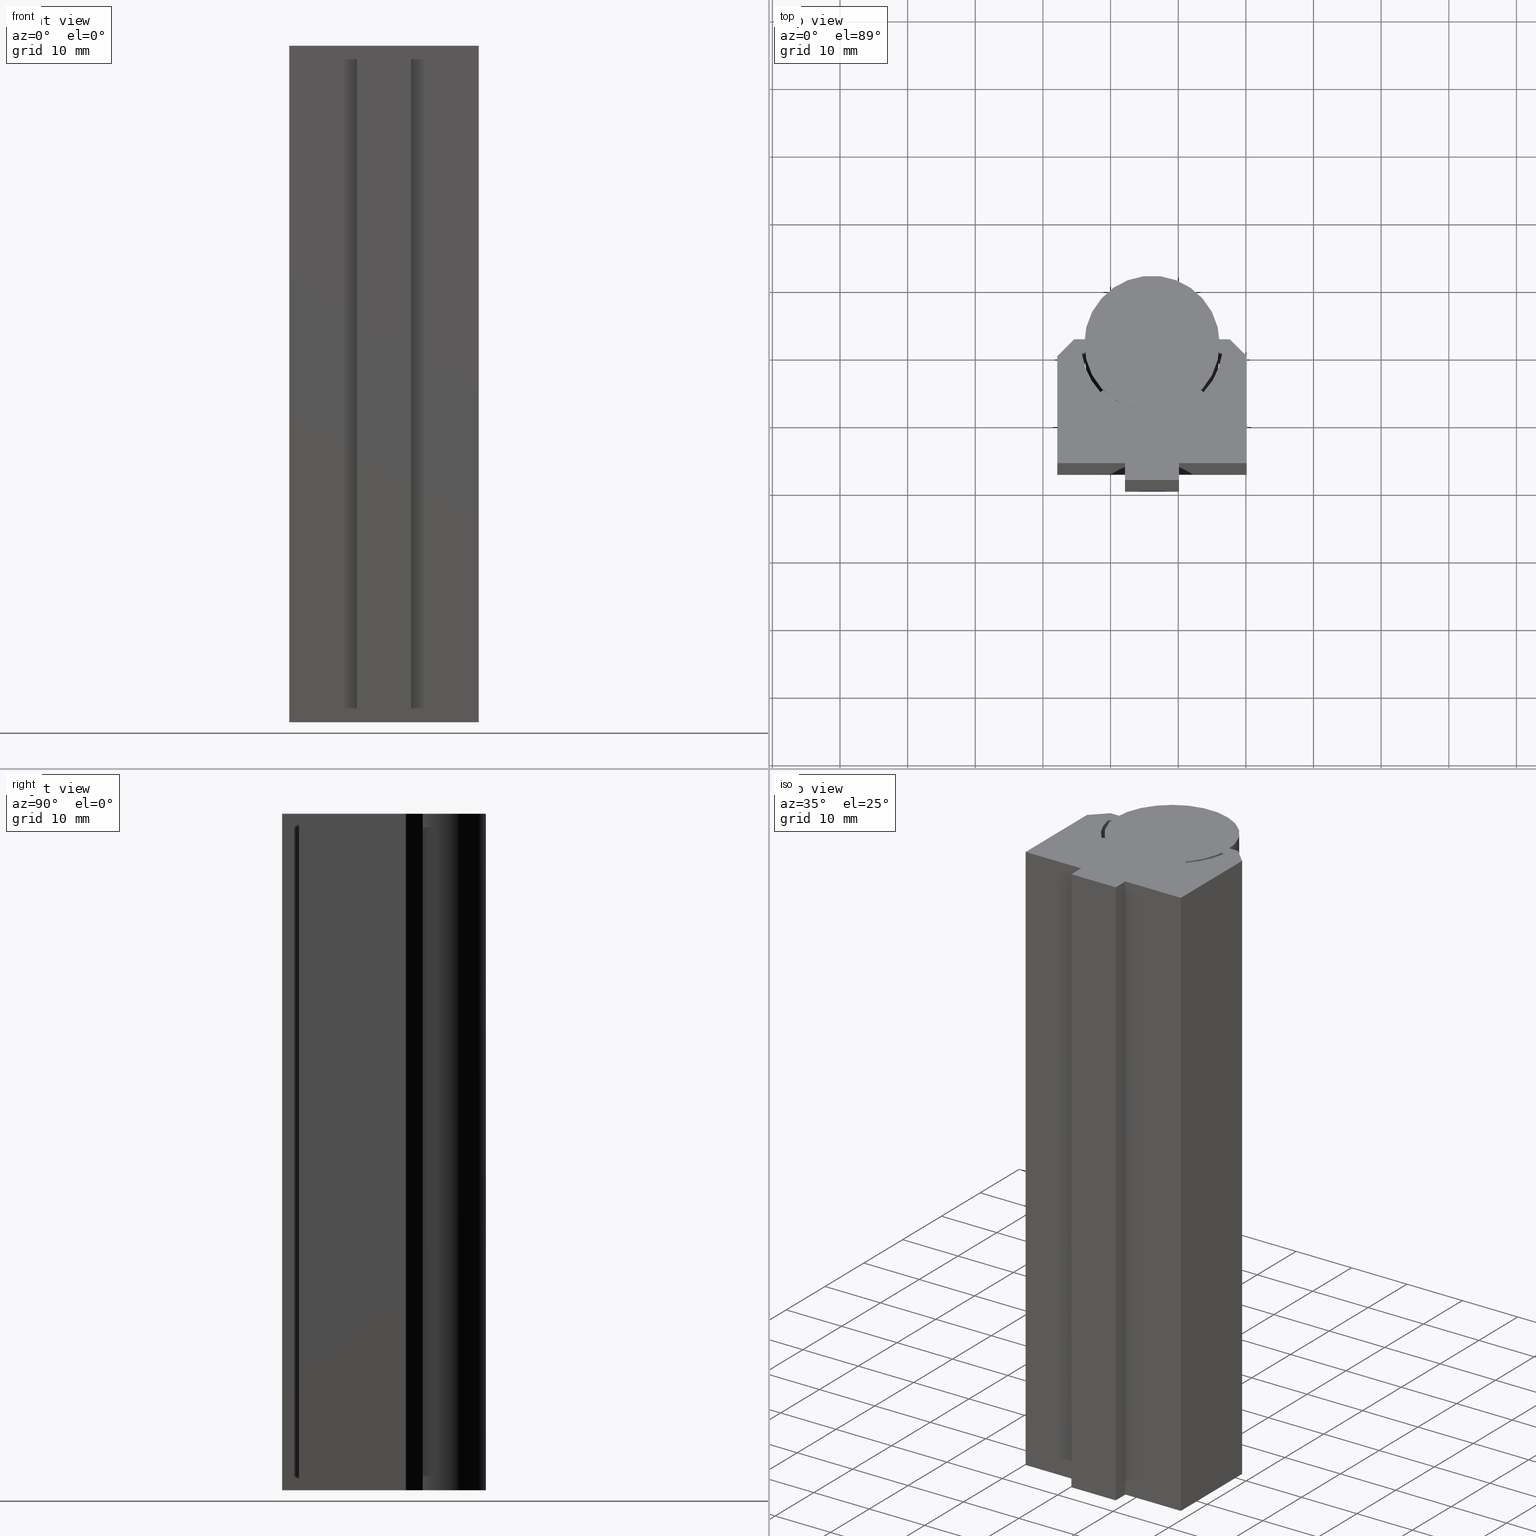
[diagram: canonical four-view strip — front | top / right | iso, engineering-drawing reading convention]
A machine part, canonical four-view strip (front | top / right | iso — engineering-drawing reading convention). The complete STEP part file that produces these views, byte-faithful:
ISO-10303-21;
HEADER;
/* Generated by software containing ST-Developer
 * from STEP Tools, Inc. (www.steptools.com) 
 */

FILE_DESCRIPTION(
/* description */ ('PROFILO SUPPORTO TONDO \X\D820'),
/* implementation_level */ '2;1');

FILE_NAME(
/* name */ 
'C:\\Users\\tecnico5\\Desktop\\SITOWEB\\BPRGD0000102\\BPRGD0000102.stp',

/* time_stamp */ '2022-07-27T10:39:41+02:00',
/* author */ ('tecnico3.vi'),
/* organization */ (''),
/* preprocessor_version */ 'ST-DEVELOPER v18.1',
/* originating_system */ 'Autodesk Inventor 2022',
/* authorisation */ '');

FILE_SCHEMA (('AUTOMOTIVE_DESIGN { 1 0 10303 214 3 1 1 }'));
ENDSEC;

DATA;
#10=MECHANICAL_DESIGN_GEOMETRIC_PRESENTATION_REPRESENTATION('',(#13,#14,
#15,#16,#17),#783);
#11=SHAPE_REPRESENTATION_RELATIONSHIP('SRR','None',#790,#12);
#12=ADVANCED_BREP_SHAPE_REPRESENTATION('',(#18,#19),#782);
#13=STYLED_ITEM('',(#799),#18);
#14=STYLED_ITEM('',(#800),#466);
#15=STYLED_ITEM('',(#800),#467);
#16=STYLED_ITEM('',(#800),#468);
#17=STYLED_ITEM('',(#799),#19);
#18=MANIFOLD_SOLID_BREP('Solido1',#469);
#19=MANIFOLD_SOLID_BREP('Solido2',#470);
#20=CIRCLE('',#503,10.5);
#21=CIRCLE('',#504,10.5);
#22=CIRCLE('',#507,10.);
#23=CIRCLE('',#508,10.);
#24=CIRCLE('',#511,10.5);
#25=CIRCLE('',#512,10.5);
#26=CIRCLE('',#522,10.);
#27=CIRCLE('',#523,10.);
#28=CYLINDRICAL_SURFACE('',#502,10.5);
#29=CYLINDRICAL_SURFACE('',#506,10.);
#30=CYLINDRICAL_SURFACE('',#510,10.5);
#31=CYLINDRICAL_SURFACE('',#521,10.);
#32=FACE_OUTER_BOUND('',#57,.T.);
#33=FACE_OUTER_BOUND('',#58,.T.);
#34=FACE_OUTER_BOUND('',#59,.T.);
#35=FACE_OUTER_BOUND('',#60,.T.);
#36=FACE_OUTER_BOUND('',#61,.T.);
#37=FACE_OUTER_BOUND('',#62,.T.);
#38=FACE_OUTER_BOUND('',#63,.T.);
#39=FACE_OUTER_BOUND('',#64,.T.);
#40=FACE_OUTER_BOUND('',#65,.T.);
#41=FACE_OUTER_BOUND('',#66,.T.);
#42=FACE_OUTER_BOUND('',#67,.T.);
#43=FACE_OUTER_BOUND('',#68,.T.);
#44=FACE_OUTER_BOUND('',#69,.T.);
#45=FACE_OUTER_BOUND('',#70,.T.);
#46=FACE_OUTER_BOUND('',#71,.T.);
#47=FACE_OUTER_BOUND('',#72,.T.);
#48=FACE_OUTER_BOUND('',#73,.T.);
#49=FACE_OUTER_BOUND('',#74,.T.);
#50=FACE_OUTER_BOUND('',#75,.T.);
#51=FACE_OUTER_BOUND('',#76,.T.);
#52=FACE_OUTER_BOUND('',#77,.T.);
#53=FACE_OUTER_BOUND('',#78,.T.);
#54=FACE_OUTER_BOUND('',#79,.T.);
#55=FACE_OUTER_BOUND('',#80,.T.);
#56=FACE_OUTER_BOUND('',#81,.T.);
#57=EDGE_LOOP('',(#297,#298,#299,#300));
#58=EDGE_LOOP('',(#301,#302,#303,#304));
#59=EDGE_LOOP('',(#305,#306,#307,#308));
#60=EDGE_LOOP('',(#309,#310,#311,#312));
#61=EDGE_LOOP('',(#313,#314,#315,#316));
#62=EDGE_LOOP('',(#317,#318,#319,#320));
#63=EDGE_LOOP('',(#321,#322,#323,#324));
#64=EDGE_LOOP('',(#325,#326,#327,#328));
#65=EDGE_LOOP('',(#329,#330,#331,#332));
#66=EDGE_LOOP('',(#333,#334,#335,#336));
#67=EDGE_LOOP('',(#337,#338,#339,#340));
#68=EDGE_LOOP('',(#341,#342,#343,#344));
#69=EDGE_LOOP('',(#345,#346,#347,#348));
#70=EDGE_LOOP('',(#349,#350,#351,#352));
#71=EDGE_LOOP('',(#353,#354,#355,#356));
#72=EDGE_LOOP('',(#357,#358,#359,#360));
#73=EDGE_LOOP('',(#361,#362,#363,#364));
#74=EDGE_LOOP('',(#365,#366,#367,#368));
#75=EDGE_LOOP('',(#369,#370,#371,#372));
#76=EDGE_LOOP('',(#373,#374,#375,#376));
#77=EDGE_LOOP('',(#377,#378,#379,#380,#381,#382,#383,#384,#385,#386,#387,
#388,#389,#390,#391,#392,#393,#394,#395,#396));
#78=EDGE_LOOP('',(#397,#398,#399,#400,#401,#402,#403,#404,#405,#406,#407,
#408,#409,#410,#411,#412,#413,#414,#415,#416));
#79=EDGE_LOOP('',(#417,#418,#419,#420));
#80=EDGE_LOOP('',(#421));
#81=EDGE_LOOP('',(#422));
#82=LINE('',#653,#137);
#83=LINE('',#655,#138);
#84=LINE('',#657,#139);
#85=LINE('',#658,#140);
#86=LINE('',#662,#141);
#87=LINE('',#664,#142);
#88=LINE('',#666,#143);
#89=LINE('',#667,#144);
#90=LINE('',#671,#145);
#91=LINE('',#673,#146);
#92=LINE('',#675,#147);
#93=LINE('',#676,#148);
#94=LINE('',#679,#149);
#95=LINE('',#681,#150);
#96=LINE('',#682,#151);
#97=LINE('',#685,#152);
#98=LINE('',#687,#153);
#99=LINE('',#688,#154);
#100=LINE('',#691,#155);
#101=LINE('',#693,#156);
#102=LINE('',#694,#157);
#103=LINE('',#697,#158);
#104=LINE('',#699,#159);
#105=LINE('',#700,#160);
#106=LINE('',#702,#161);
#107=LINE('',#703,#162);
#108=LINE('',#706,#163);
#109=LINE('',#708,#164);
#110=LINE('',#709,#165);
#111=LINE('',#714,#166);
#112=LINE('',#718,#167);
#113=LINE('',#720,#168);
#114=LINE('',#721,#169);
#115=LINE('',#726,#170);
#116=LINE('',#730,#171);
#117=LINE('',#732,#172);
#118=LINE('',#733,#173);
#119=LINE('',#738,#174);
#120=LINE('',#741,#175);
#121=LINE('',#742,#176);
#122=LINE('',#745,#177);
#123=LINE('',#747,#178);
#124=LINE('',#748,#179);
#125=LINE('',#751,#180);
#126=LINE('',#753,#181);
#127=LINE('',#754,#182);
#128=LINE('',#757,#183);
#129=LINE('',#759,#184);
#130=LINE('',#760,#185);
#131=LINE('',#763,#186);
#132=LINE('',#765,#187);
#133=LINE('',#766,#188);
#134=LINE('',#768,#189);
#135=LINE('',#769,#190);
#136=LINE('',#776,#191);
#137=VECTOR('',#530,10.);
#138=VECTOR('',#531,10.);
#139=VECTOR('',#532,10.);
#140=VECTOR('',#533,10.);
#141=VECTOR('',#536,10.);
#142=VECTOR('',#537,10.);
#143=VECTOR('',#538,10.);
#144=VECTOR('',#539,10.);
#145=VECTOR('',#542,10.);
#146=VECTOR('',#543,10.);
#147=VECTOR('',#544,10.);
#148=VECTOR('',#545,10.);
#149=VECTOR('',#548,10.);
#150=VECTOR('',#549,10.);
#151=VECTOR('',#550,10.);
#152=VECTOR('',#553,10.);
#153=VECTOR('',#554,10.);
#154=VECTOR('',#555,10.);
#155=VECTOR('',#558,10.);
#156=VECTOR('',#559,10.);
#157=VECTOR('',#560,10.);
#158=VECTOR('',#563,10.);
#159=VECTOR('',#564,10.);
#160=VECTOR('',#565,10.);
#161=VECTOR('',#568,10.);
#162=VECTOR('',#569,10.);
#163=VECTOR('',#572,10.);
#164=VECTOR('',#573,10.);
#165=VECTOR('',#574,10.);
#166=VECTOR('',#579,10.);
#167=VECTOR('',#584,10.);
#168=VECTOR('',#585,10.);
#169=VECTOR('',#586,10.);
#170=VECTOR('',#591,10.);
#171=VECTOR('',#596,10.);
#172=VECTOR('',#597,10.);
#173=VECTOR('',#598,10.);
#174=VECTOR('',#603,10.);
#175=VECTOR('',#608,10.);
#176=VECTOR('',#609,10.);
#177=VECTOR('',#612,10.);
#178=VECTOR('',#613,10.);
#179=VECTOR('',#614,10.);
#180=VECTOR('',#617,10.);
#181=VECTOR('',#618,10.);
#182=VECTOR('',#619,10.);
#183=VECTOR('',#622,10.);
#184=VECTOR('',#623,10.);
#185=VECTOR('',#624,10.);
#186=VECTOR('',#627,10.);
#187=VECTOR('',#628,10.);
#188=VECTOR('',#629,10.);
#189=VECTOR('',#632,10.);
#190=VECTOR('',#633,10.);
#191=VECTOR('',#642,10.);
#192=VERTEX_POINT('',#651);
#193=VERTEX_POINT('',#652);
#194=VERTEX_POINT('',#654);
#195=VERTEX_POINT('',#656);
#196=VERTEX_POINT('',#660);
#197=VERTEX_POINT('',#661);
#198=VERTEX_POINT('',#663);
#199=VERTEX_POINT('',#665);
#200=VERTEX_POINT('',#669);
#201=VERTEX_POINT('',#670);
#202=VERTEX_POINT('',#672);
#203=VERTEX_POINT('',#674);
#204=VERTEX_POINT('',#678);
#205=VERTEX_POINT('',#680);
#206=VERTEX_POINT('',#684);
#207=VERTEX_POINT('',#686);
#208=VERTEX_POINT('',#690);
#209=VERTEX_POINT('',#692);
#210=VERTEX_POINT('',#696);
#211=VERTEX_POINT('',#698);
#212=VERTEX_POINT('',#705);
#213=VERTEX_POINT('',#707);
#214=VERTEX_POINT('',#711);
#215=VERTEX_POINT('',#713);
#216=VERTEX_POINT('',#717);
#217=VERTEX_POINT('',#719);
#218=VERTEX_POINT('',#723);
#219=VERTEX_POINT('',#725);
#220=VERTEX_POINT('',#729);
#221=VERTEX_POINT('',#731);
#222=VERTEX_POINT('',#735);
#223=VERTEX_POINT('',#737);
#224=VERTEX_POINT('',#744);
#225=VERTEX_POINT('',#746);
#226=VERTEX_POINT('',#750);
#227=VERTEX_POINT('',#752);
#228=VERTEX_POINT('',#756);
#229=VERTEX_POINT('',#758);
#230=VERTEX_POINT('',#762);
#231=VERTEX_POINT('',#764);
#232=VERTEX_POINT('',#773);
#233=VERTEX_POINT('',#775);
#234=EDGE_CURVE('',#192,#193,#82,.T.);
#235=EDGE_CURVE('',#194,#192,#83,.T.);
#236=EDGE_CURVE('',#195,#194,#84,.T.);
#237=EDGE_CURVE('',#193,#195,#85,.T.);
#238=EDGE_CURVE('',#196,#197,#86,.T.);
#239=EDGE_CURVE('',#196,#198,#87,.T.);
#240=EDGE_CURVE('',#199,#198,#88,.T.);
#241=EDGE_CURVE('',#199,#197,#89,.T.);
#242=EDGE_CURVE('',#200,#201,#90,.T.);
#243=EDGE_CURVE('',#202,#201,#91,.T.);
#244=EDGE_CURVE('',#202,#203,#92,.T.);
#245=EDGE_CURVE('',#203,#200,#93,.T.);
#246=EDGE_CURVE('',#201,#204,#94,.T.);
#247=EDGE_CURVE('',#205,#204,#95,.T.);
#248=EDGE_CURVE('',#205,#202,#96,.T.);
#249=EDGE_CURVE('',#204,#206,#97,.T.);
#250=EDGE_CURVE('',#207,#206,#98,.T.);
#251=EDGE_CURVE('',#207,#205,#99,.T.);
#252=EDGE_CURVE('',#206,#208,#100,.T.);
#253=EDGE_CURVE('',#209,#208,#101,.T.);
#254=EDGE_CURVE('',#209,#207,#102,.T.);
#255=EDGE_CURVE('',#208,#210,#103,.T.);
#256=EDGE_CURVE('',#211,#210,#104,.T.);
#257=EDGE_CURVE('',#211,#209,#105,.T.);
#258=EDGE_CURVE('',#194,#210,#106,.T.);
#259=EDGE_CURVE('',#211,#192,#107,.T.);
#260=EDGE_CURVE('',#195,#212,#108,.T.);
#261=EDGE_CURVE('',#213,#212,#109,.T.);
#262=EDGE_CURVE('',#213,#193,#110,.T.);
#263=EDGE_CURVE('',#212,#214,#20,.T.);
#264=EDGE_CURVE('',#215,#214,#111,.T.);
#265=EDGE_CURVE('',#215,#213,#21,.T.);
#266=EDGE_CURVE('',#214,#216,#112,.T.);
#267=EDGE_CURVE('',#217,#216,#113,.T.);
#268=EDGE_CURVE('',#217,#215,#114,.T.);
#269=EDGE_CURVE('',#216,#218,#22,.T.);
#270=EDGE_CURVE('',#219,#218,#115,.T.);
#271=EDGE_CURVE('',#219,#217,#23,.T.);
#272=EDGE_CURVE('',#218,#220,#116,.T.);
#273=EDGE_CURVE('',#221,#220,#117,.T.);
#274=EDGE_CURVE('',#221,#219,#118,.T.);
#275=EDGE_CURVE('',#220,#222,#24,.T.);
#276=EDGE_CURVE('',#223,#222,#119,.T.);
#277=EDGE_CURVE('',#223,#221,#25,.T.);
#278=EDGE_CURVE('',#222,#198,#120,.T.);
#279=EDGE_CURVE('',#196,#223,#121,.T.);
#280=EDGE_CURVE('',#199,#224,#122,.T.);
#281=EDGE_CURVE('',#225,#224,#123,.T.);
#282=EDGE_CURVE('',#225,#197,#124,.T.);
#283=EDGE_CURVE('',#224,#226,#125,.T.);
#284=EDGE_CURVE('',#227,#226,#126,.T.);
#285=EDGE_CURVE('',#227,#225,#127,.T.);
#286=EDGE_CURVE('',#226,#228,#128,.T.);
#287=EDGE_CURVE('',#229,#228,#129,.T.);
#288=EDGE_CURVE('',#229,#227,#130,.T.);
#289=EDGE_CURVE('',#228,#230,#131,.T.);
#290=EDGE_CURVE('',#231,#230,#132,.T.);
#291=EDGE_CURVE('',#231,#229,#133,.T.);
#292=EDGE_CURVE('',#230,#200,#134,.T.);
#293=EDGE_CURVE('',#203,#231,#135,.T.);
#294=EDGE_CURVE('',#232,#232,#26,.T.);
#295=EDGE_CURVE('',#232,#233,#136,.T.);
#296=EDGE_CURVE('',#233,#233,#27,.T.);
#297=ORIENTED_EDGE('',*,*,#234,.F.);
#298=ORIENTED_EDGE('',*,*,#235,.F.);
#299=ORIENTED_EDGE('',*,*,#236,.F.);
#300=ORIENTED_EDGE('',*,*,#237,.F.);
#301=ORIENTED_EDGE('',*,*,#238,.F.);
#302=ORIENTED_EDGE('',*,*,#239,.T.);
#303=ORIENTED_EDGE('',*,*,#240,.F.);
#304=ORIENTED_EDGE('',*,*,#241,.T.);
#305=ORIENTED_EDGE('',*,*,#242,.T.);
#306=ORIENTED_EDGE('',*,*,#243,.F.);
#307=ORIENTED_EDGE('',*,*,#244,.T.);
#308=ORIENTED_EDGE('',*,*,#245,.T.);
#309=ORIENTED_EDGE('',*,*,#246,.T.);
#310=ORIENTED_EDGE('',*,*,#247,.F.);
#311=ORIENTED_EDGE('',*,*,#248,.T.);
#312=ORIENTED_EDGE('',*,*,#243,.T.);
#313=ORIENTED_EDGE('',*,*,#249,.T.);
#314=ORIENTED_EDGE('',*,*,#250,.F.);
#315=ORIENTED_EDGE('',*,*,#251,.T.);
#316=ORIENTED_EDGE('',*,*,#247,.T.);
#317=ORIENTED_EDGE('',*,*,#252,.T.);
#318=ORIENTED_EDGE('',*,*,#253,.F.);
#319=ORIENTED_EDGE('',*,*,#254,.T.);
#320=ORIENTED_EDGE('',*,*,#250,.T.);
#321=ORIENTED_EDGE('',*,*,#255,.T.);
#322=ORIENTED_EDGE('',*,*,#256,.F.);
#323=ORIENTED_EDGE('',*,*,#257,.T.);
#324=ORIENTED_EDGE('',*,*,#253,.T.);
#325=ORIENTED_EDGE('',*,*,#258,.F.);
#326=ORIENTED_EDGE('',*,*,#235,.T.);
#327=ORIENTED_EDGE('',*,*,#259,.F.);
#328=ORIENTED_EDGE('',*,*,#256,.T.);
#329=ORIENTED_EDGE('',*,*,#260,.T.);
#330=ORIENTED_EDGE('',*,*,#261,.F.);
#331=ORIENTED_EDGE('',*,*,#262,.T.);
#332=ORIENTED_EDGE('',*,*,#237,.T.);
#333=ORIENTED_EDGE('',*,*,#263,.T.);
#334=ORIENTED_EDGE('',*,*,#264,.F.);
#335=ORIENTED_EDGE('',*,*,#265,.T.);
#336=ORIENTED_EDGE('',*,*,#261,.T.);
#337=ORIENTED_EDGE('',*,*,#266,.T.);
#338=ORIENTED_EDGE('',*,*,#267,.F.);
#339=ORIENTED_EDGE('',*,*,#268,.T.);
#340=ORIENTED_EDGE('',*,*,#264,.T.);
#341=ORIENTED_EDGE('',*,*,#269,.T.);
#342=ORIENTED_EDGE('',*,*,#270,.F.);
#343=ORIENTED_EDGE('',*,*,#271,.T.);
#344=ORIENTED_EDGE('',*,*,#267,.T.);
#345=ORIENTED_EDGE('',*,*,#272,.T.);
#346=ORIENTED_EDGE('',*,*,#273,.F.);
#347=ORIENTED_EDGE('',*,*,#274,.T.);
#348=ORIENTED_EDGE('',*,*,#270,.T.);
#349=ORIENTED_EDGE('',*,*,#275,.T.);
#350=ORIENTED_EDGE('',*,*,#276,.F.);
#351=ORIENTED_EDGE('',*,*,#277,.T.);
#352=ORIENTED_EDGE('',*,*,#273,.T.);
#353=ORIENTED_EDGE('',*,*,#278,.T.);
#354=ORIENTED_EDGE('',*,*,#239,.F.);
#355=ORIENTED_EDGE('',*,*,#279,.T.);
#356=ORIENTED_EDGE('',*,*,#276,.T.);
#357=ORIENTED_EDGE('',*,*,#280,.T.);
#358=ORIENTED_EDGE('',*,*,#281,.F.);
#359=ORIENTED_EDGE('',*,*,#282,.T.);
#360=ORIENTED_EDGE('',*,*,#241,.F.);
#361=ORIENTED_EDGE('',*,*,#283,.T.);
#362=ORIENTED_EDGE('',*,*,#284,.F.);
#363=ORIENTED_EDGE('',*,*,#285,.T.);
#364=ORIENTED_EDGE('',*,*,#281,.T.);
#365=ORIENTED_EDGE('',*,*,#286,.T.);
#366=ORIENTED_EDGE('',*,*,#287,.F.);
#367=ORIENTED_EDGE('',*,*,#288,.T.);
#368=ORIENTED_EDGE('',*,*,#284,.T.);
#369=ORIENTED_EDGE('',*,*,#289,.T.);
#370=ORIENTED_EDGE('',*,*,#290,.F.);
#371=ORIENTED_EDGE('',*,*,#291,.T.);
#372=ORIENTED_EDGE('',*,*,#287,.T.);
#373=ORIENTED_EDGE('',*,*,#292,.T.);
#374=ORIENTED_EDGE('',*,*,#245,.F.);
#375=ORIENTED_EDGE('',*,*,#293,.T.);
#376=ORIENTED_EDGE('',*,*,#290,.T.);
#377=ORIENTED_EDGE('',*,*,#244,.F.);
#378=ORIENTED_EDGE('',*,*,#248,.F.);
#379=ORIENTED_EDGE('',*,*,#251,.F.);
#380=ORIENTED_EDGE('',*,*,#254,.F.);
#381=ORIENTED_EDGE('',*,*,#257,.F.);
#382=ORIENTED_EDGE('',*,*,#259,.T.);
#383=ORIENTED_EDGE('',*,*,#234,.T.);
#384=ORIENTED_EDGE('',*,*,#262,.F.);
#385=ORIENTED_EDGE('',*,*,#265,.F.);
#386=ORIENTED_EDGE('',*,*,#268,.F.);
#387=ORIENTED_EDGE('',*,*,#271,.F.);
#388=ORIENTED_EDGE('',*,*,#274,.F.);
#389=ORIENTED_EDGE('',*,*,#277,.F.);
#390=ORIENTED_EDGE('',*,*,#279,.F.);
#391=ORIENTED_EDGE('',*,*,#238,.T.);
#392=ORIENTED_EDGE('',*,*,#282,.F.);
#393=ORIENTED_EDGE('',*,*,#285,.F.);
#394=ORIENTED_EDGE('',*,*,#288,.F.);
#395=ORIENTED_EDGE('',*,*,#291,.F.);
#396=ORIENTED_EDGE('',*,*,#293,.F.);
#397=ORIENTED_EDGE('',*,*,#242,.F.);
#398=ORIENTED_EDGE('',*,*,#292,.F.);
#399=ORIENTED_EDGE('',*,*,#289,.F.);
#400=ORIENTED_EDGE('',*,*,#286,.F.);
#401=ORIENTED_EDGE('',*,*,#283,.F.);
#402=ORIENTED_EDGE('',*,*,#280,.F.);
#403=ORIENTED_EDGE('',*,*,#240,.T.);
#404=ORIENTED_EDGE('',*,*,#278,.F.);
#405=ORIENTED_EDGE('',*,*,#275,.F.);
#406=ORIENTED_EDGE('',*,*,#272,.F.);
#407=ORIENTED_EDGE('',*,*,#269,.F.);
#408=ORIENTED_EDGE('',*,*,#266,.F.);
#409=ORIENTED_EDGE('',*,*,#263,.F.);
#410=ORIENTED_EDGE('',*,*,#260,.F.);
#411=ORIENTED_EDGE('',*,*,#236,.T.);
#412=ORIENTED_EDGE('',*,*,#258,.T.);
#413=ORIENTED_EDGE('',*,*,#255,.F.);
#414=ORIENTED_EDGE('',*,*,#252,.F.);
#415=ORIENTED_EDGE('',*,*,#249,.F.);
#416=ORIENTED_EDGE('',*,*,#246,.F.);
#417=ORIENTED_EDGE('',*,*,#294,.F.);
#418=ORIENTED_EDGE('',*,*,#295,.T.);
#419=ORIENTED_EDGE('',*,*,#296,.F.);
#420=ORIENTED_EDGE('',*,*,#295,.F.);
#421=ORIENTED_EDGE('',*,*,#296,.T.);
#422=ORIENTED_EDGE('',*,*,#294,.T.);
#423=PLANE('',#493);
#424=PLANE('',#494);
#425=PLANE('',#495);
#426=PLANE('',#496);
#427=PLANE('',#497);
#428=PLANE('',#498);
#429=PLANE('',#499);
#430=PLANE('',#500);
#431=PLANE('',#501);
#432=PLANE('',#505);
#433=PLANE('',#509);
#434=PLANE('',#513);
#435=PLANE('',#514);
#436=PLANE('',#515);
#437=PLANE('',#516);
#438=PLANE('',#517);
#439=PLANE('',#518);
#440=PLANE('',#519);
#441=PLANE('',#520);
#442=PLANE('',#524);
#443=PLANE('',#525);
#444=ADVANCED_FACE('',(#32),#423,.T.);
#445=ADVANCED_FACE('',(#33),#424,.T.);
#446=ADVANCED_FACE('',(#34),#425,.T.);
#447=ADVANCED_FACE('',(#35),#426,.T.);
#448=ADVANCED_FACE('',(#36),#427,.T.);
#449=ADVANCED_FACE('',(#37),#428,.T.);
#450=ADVANCED_FACE('',(#38),#429,.T.);
#451=ADVANCED_FACE('',(#39),#430,.T.);
#452=ADVANCED_FACE('',(#40),#431,.T.);
#453=ADVANCED_FACE('',(#41),#28,.F.);
#454=ADVANCED_FACE('',(#42),#432,.T.);
#455=ADVANCED_FACE('',(#43),#29,.F.);
#456=ADVANCED_FACE('',(#44),#433,.T.);
#457=ADVANCED_FACE('',(#45),#30,.F.);
#458=ADVANCED_FACE('',(#46),#434,.T.);
#459=ADVANCED_FACE('',(#47),#435,.T.);
#460=ADVANCED_FACE('',(#48),#436,.T.);
#461=ADVANCED_FACE('',(#49),#437,.T.);
#462=ADVANCED_FACE('',(#50),#438,.T.);
#463=ADVANCED_FACE('',(#51),#439,.T.);
#464=ADVANCED_FACE('',(#52),#440,.F.);
#465=ADVANCED_FACE('',(#53),#441,.T.);
#466=ADVANCED_FACE('',(#54),#31,.T.);
#467=ADVANCED_FACE('',(#55),#442,.T.);
#468=ADVANCED_FACE('',(#56),#443,.F.);
#469=CLOSED_SHELL('',(#444,#445,#446,#447,#448,#449,#450,#451,#452,#453,
#454,#455,#456,#457,#458,#459,#460,#461,#462,#463,#464,#465));
#470=CLOSED_SHELL('',(#466,#467,#468));
#471=DERIVED_UNIT_ELEMENT(#474,1.);
#472=DERIVED_UNIT_ELEMENT(#785,-3.);
#473=DIMENSIONAL_EXPONENTS(1.,0.,0.,0.,0.,0.,0.);
#474=(
CONVERSION_BASED_UNIT('gram',#476)
MASS_UNIT()
NAMED_UNIT(#473)
);
#475=(
MASS_UNIT()
NAMED_UNIT(*)
SI_UNIT(.KILO.,.GRAM.)
);
#476=MASS_MEASURE_WITH_UNIT(MASS_MEASURE(0.001),#475);
#477=DERIVED_UNIT((#471,#472));
#478=MEASURE_REPRESENTATION_ITEM('density measure',
POSITIVE_RATIO_MEASURE(2.71),#477);
#479=PROPERTY_DEFINITION_REPRESENTATION(#484,#481);
#480=PROPERTY_DEFINITION_REPRESENTATION(#485,#482);
#481=REPRESENTATION('material name',(#483),#782);
#482=REPRESENTATION('density',(#478),#782);
#483=DESCRIPTIVE_REPRESENTATION_ITEM('Alluminio','Alluminio');
#484=PROPERTY_DEFINITION('material property','material name',#792);
#485=PROPERTY_DEFINITION('material property','density of part',#792);
#486=DATE_TIME_ROLE('creation_date');
#487=APPLIED_DATE_AND_TIME_ASSIGNMENT(#488,#486,(#792));
#488=DATE_AND_TIME(#489,#490);
#489=CALENDAR_DATE(2007,8,11);
#490=LOCAL_TIME(0,0,0.,#491);
#491=COORDINATED_UNIVERSAL_TIME_OFFSET(0,0,.BEHIND.);
#492=AXIS2_PLACEMENT_3D('placement',#649,#526,#527);
#493=AXIS2_PLACEMENT_3D('',#650,#528,#529);
#494=AXIS2_PLACEMENT_3D('',#659,#534,#535);
#495=AXIS2_PLACEMENT_3D('',#668,#540,#541);
#496=AXIS2_PLACEMENT_3D('',#677,#546,#547);
#497=AXIS2_PLACEMENT_3D('',#683,#551,#552);
#498=AXIS2_PLACEMENT_3D('',#689,#556,#557);
#499=AXIS2_PLACEMENT_3D('',#695,#561,#562);
#500=AXIS2_PLACEMENT_3D('',#701,#566,#567);
#501=AXIS2_PLACEMENT_3D('',#704,#570,#571);
#502=AXIS2_PLACEMENT_3D('',#710,#575,#576);
#503=AXIS2_PLACEMENT_3D('',#712,#577,#578);
#504=AXIS2_PLACEMENT_3D('',#715,#580,#581);
#505=AXIS2_PLACEMENT_3D('',#716,#582,#583);
#506=AXIS2_PLACEMENT_3D('',#722,#587,#588);
#507=AXIS2_PLACEMENT_3D('',#724,#589,#590);
#508=AXIS2_PLACEMENT_3D('',#727,#592,#593);
#509=AXIS2_PLACEMENT_3D('',#728,#594,#595);
#510=AXIS2_PLACEMENT_3D('',#734,#599,#600);
#511=AXIS2_PLACEMENT_3D('',#736,#601,#602);
#512=AXIS2_PLACEMENT_3D('',#739,#604,#605);
#513=AXIS2_PLACEMENT_3D('',#740,#606,#607);
#514=AXIS2_PLACEMENT_3D('',#743,#610,#611);
#515=AXIS2_PLACEMENT_3D('',#749,#615,#616);
#516=AXIS2_PLACEMENT_3D('',#755,#620,#621);
#517=AXIS2_PLACEMENT_3D('',#761,#625,#626);
#518=AXIS2_PLACEMENT_3D('',#767,#630,#631);
#519=AXIS2_PLACEMENT_3D('',#770,#634,#635);
#520=AXIS2_PLACEMENT_3D('',#771,#636,#637);
#521=AXIS2_PLACEMENT_3D('',#772,#638,#639);
#522=AXIS2_PLACEMENT_3D('',#774,#640,#641);
#523=AXIS2_PLACEMENT_3D('',#777,#643,#644);
#524=AXIS2_PLACEMENT_3D('',#778,#645,#646);
#525=AXIS2_PLACEMENT_3D('',#779,#647,#648);
#526=DIRECTION('axis',(0.,0.,1.));
#527=DIRECTION('refdir',(1.,0.,0.));
#528=DIRECTION('center_axis',(0.997211597189078,-0.0746259367218186,0.));
#529=DIRECTION('ref_axis',(0.,0.,-1.));
#530=DIRECTION('',(-0.0746259367218186,-0.997211597189078,0.));
#531=DIRECTION('',(0.,0.,-1.));
#532=DIRECTION('',(0.0746259367218186,0.997211597189078,0.));
#533=DIRECTION('',(0.,0.,1.));
#534=DIRECTION('center_axis',(-0.997211597189077,-0.0746259367218233,0.));
#535=DIRECTION('ref_axis',(0.,0.,1.));
#536=DIRECTION('',(-0.0746259367218233,0.997211597189077,0.));
#537=DIRECTION('',(0.,0.,1.));
#538=DIRECTION('',(0.0746259367218233,-0.997211597189077,0.));
#539=DIRECTION('',(0.,0.,-1.));
#540=DIRECTION('center_axis',(1.21430643318377E-16,-1.,0.));
#541=DIRECTION('ref_axis',(0.,0.,-1.));
#542=DIRECTION('',(-1.,-1.21430643318377E-16,0.));
#543=DIRECTION('',(0.,0.,1.));
#544=DIRECTION('',(1.,6.59194920871187E-16,0.));
#545=DIRECTION('',(0.,0.,1.));
#546=DIRECTION('center_axis',(-1.,0.,0.));
#547=DIRECTION('ref_axis',(0.,0.,1.));
#548=DIRECTION('',(0.,1.,0.));
#549=DIRECTION('',(0.,0.,1.));
#550=DIRECTION('',(0.,-1.,0.));
#551=DIRECTION('center_axis',(1.66533453693773E-16,-1.,0.));
#552=DIRECTION('ref_axis',(0.,0.,-1.));
#553=DIRECTION('',(-1.,-1.66533453693773E-16,0.));
#554=DIRECTION('',(0.,0.,1.));
#555=DIRECTION('',(1.,1.66533453693773E-16,0.));
#556=DIRECTION('center_axis',(-1.,0.,0.));
#557=DIRECTION('ref_axis',(0.,0.,1.));
#558=DIRECTION('',(0.,1.,0.));
#559=DIRECTION('',(0.,0.,1.));
#560=DIRECTION('',(0.,-1.,0.));
#561=DIRECTION('center_axis',(-0.707106781186548,0.707106781186547,0.));
#562=DIRECTION('ref_axis',(0.,0.,1.));
#563=DIRECTION('',(0.707106781186547,0.707106781186548,0.));
#564=DIRECTION('',(0.,0.,1.));
#565=DIRECTION('',(-0.707106781186547,-0.707106781186548,0.));
#566=DIRECTION('center_axis',(-2.92545758932075E-15,1.,0.));
#567=DIRECTION('ref_axis',(0.,0.,1.));
#568=DIRECTION('',(-1.,0.,0.));
#569=DIRECTION('',(1.,0.,0.));
#570=DIRECTION('center_axis',(0.140851921588688,-0.990030674365585,0.));
#571=DIRECTION('ref_axis',(0.,0.,-1.));
#572=DIRECTION('',(-0.990030674365584,-0.140851921588688,0.));
#573=DIRECTION('',(0.,0.,1.));
#574=DIRECTION('',(0.990030674365584,0.140851921588688,0.));
#575=DIRECTION('center_axis',(0.,0.,1.));
#576=DIRECTION('ref_axis',(0.990030674365585,0.140851921588688,0.));
#577=DIRECTION('center_axis',(0.,0.,1.));
#578=DIRECTION('ref_axis',(0.990030674365585,0.140851921588688,0.));
#579=DIRECTION('',(0.,0.,1.));
#580=DIRECTION('center_axis',(0.,0.,-1.));
#581=DIRECTION('ref_axis',(0.990030674365585,0.140851921588688,0.));
#582=DIRECTION('center_axis',(-0.688748865697783,0.725000000000012,0.));
#583=DIRECTION('ref_axis',(0.,0.,1.));
#584=DIRECTION('',(0.725000000000012,0.688748865697783,0.));
#585=DIRECTION('',(0.,0.,1.));
#586=DIRECTION('',(-0.725000000000012,-0.688748865697783,0.));
#587=DIRECTION('center_axis',(0.,0.,1.));
#588=DIRECTION('ref_axis',(0.724999999999999,0.688748865697796,0.));
#589=DIRECTION('center_axis',(0.,0.,1.));
#590=DIRECTION('ref_axis',(0.724999999999999,0.688748865697796,0.));
#591=DIRECTION('',(0.,0.,1.));
#592=DIRECTION('center_axis',(0.,0.,-1.));
#593=DIRECTION('ref_axis',(0.724999999999999,0.688748865697796,0.));
#594=DIRECTION('center_axis',(0.688748865697798,0.724999999999997,0.));
#595=DIRECTION('ref_axis',(0.,0.,-1.));
#596=DIRECTION('',(0.724999999999997,-0.688748865697798,0.));
#597=DIRECTION('',(0.,0.,1.));
#598=DIRECTION('',(-0.724999999999997,0.688748865697798,0.));
#599=DIRECTION('center_axis',(0.,0.,1.));
#600=DIRECTION('ref_axis',(-0.725,0.688748865697795,0.));
#601=DIRECTION('center_axis',(0.,0.,1.));
#602=DIRECTION('ref_axis',(-0.725,0.688748865697795,0.));
#603=DIRECTION('',(0.,0.,1.));
#604=DIRECTION('center_axis',(0.,0.,-1.));
#605=DIRECTION('ref_axis',(-0.725,0.688748865697795,0.));
#606=DIRECTION('center_axis',(-0.140851921588689,-0.990030674365584,0.));
#607=DIRECTION('ref_axis',(0.,0.,-1.));
#608=DIRECTION('',(-0.990030674365584,0.140851921588689,0.));
#609=DIRECTION('',(0.990030674365584,-0.140851921588689,0.));
#610=DIRECTION('center_axis',(2.92545758932076E-15,1.,0.));
#611=DIRECTION('ref_axis',(0.,0.,1.));
#612=DIRECTION('',(1.,-2.92545758932076E-15,0.));
#613=DIRECTION('',(0.,0.,1.));
#614=DIRECTION('',(-1.,2.92545758932076E-15,0.));
#615=DIRECTION('center_axis',(0.707106781186548,0.707106781186547,0.));
#616=DIRECTION('ref_axis',(0.,0.,-1.));
#617=DIRECTION('',(0.707106781186547,-0.707106781186548,0.));
#618=DIRECTION('',(0.,0.,1.));
#619=DIRECTION('',(-0.707106781186547,0.707106781186548,0.));
#620=DIRECTION('center_axis',(1.,5.62138240316535E-16,0.));
#621=DIRECTION('ref_axis',(0.,0.,-1.));
#622=DIRECTION('',(5.62138240316535E-16,-1.,0.));
#623=DIRECTION('',(0.,0.,1.));
#624=DIRECTION('',(-5.62138240316535E-16,1.,0.));
#625=DIRECTION('center_axis',(6.66133814775094E-16,-1.,0.));
#626=DIRECTION('ref_axis',(0.,0.,-1.));
#627=DIRECTION('',(-1.,-6.66133814775094E-16,0.));
#628=DIRECTION('',(0.,0.,1.));
#629=DIRECTION('',(1.,6.66133814775094E-16,0.));
#630=DIRECTION('center_axis',(1.,8.88178419700125E-16,0.));
#631=DIRECTION('ref_axis',(0.,0.,-1.));
#632=DIRECTION('',(8.88178419700125E-16,-1.,0.));
#633=DIRECTION('',(-8.88178419700125E-16,1.,0.));
#634=DIRECTION('center_axis',(0.,0.,1.));
#635=DIRECTION('ref_axis',(1.,0.,0.));
#636=DIRECTION('center_axis',(0.,0.,1.));
#637=DIRECTION('ref_axis',(1.,0.,0.));
#638=DIRECTION('center_axis',(0.,0.,-1.));
#639=DIRECTION('ref_axis',(1.,0.,0.));
#640=DIRECTION('center_axis',(0.,0.,-1.));
#641=DIRECTION('ref_axis',(1.,0.,0.));
#642=DIRECTION('',(0.,0.,1.));
#643=DIRECTION('center_axis',(0.,0.,1.));
#644=DIRECTION('ref_axis',(1.,0.,0.));
#645=DIRECTION('center_axis',(0.,0.,1.));
#646=DIRECTION('ref_axis',(1.,0.,0.));
#647=DIRECTION('center_axis',(0.,0.,1.));
#648=DIRECTION('ref_axis',(1.,0.,0.));
#649=CARTESIAN_POINT('',(0.,0.,0.));
#650=CARTESIAN_POINT('Origin',(-23.7759935036606,19.2939924968619,100.));
#651=CARTESIAN_POINT('',(-23.6256867600048,21.3025117127487,0.));
#652=CARTESIAN_POINT('',(-23.7759935036606,19.2939924968619,0.));
#653=CARTESIAN_POINT('',(-23.7110585286852,20.1617056935492,-8.88178419700125E-15));
#654=CARTESIAN_POINT('',(-23.6256867600048,21.3025117127487,100.));
#655=CARTESIAN_POINT('',(-23.6256867600048,21.3025117127487,100.));
#656=CARTESIAN_POINT('',(-23.7759935036606,19.2939924968619,100.));
#657=CARTESIAN_POINT('',(-23.7759935036606,19.2939924968619,100.));
#658=CARTESIAN_POINT('',(-23.7759935036606,19.2939924968619,0.));
#659=CARTESIAN_POINT('Origin',(-4.12568676000476,21.3025117127487,100.));
#660=CARTESIAN_POINT('',(-3.97538001634891,19.2939924968619,0.));
#661=CARTESIAN_POINT('',(-4.12568676000476,21.3025117127487,0.));
#662=CARTESIAN_POINT('',(-4.11546836315227,21.1659653014927,-8.88178419700125E-15));
#663=CARTESIAN_POINT('',(-3.97538001634891,19.2939924968619,100.));
#664=CARTESIAN_POINT('',(-3.97538001634891,19.2939924968619,0.));
#665=CARTESIAN_POINT('',(-4.12568676000476,21.3025117127487,100.));
#666=CARTESIAN_POINT('',(-4.12568676000476,21.3025117127487,100.));
#667=CARTESIAN_POINT('',(-4.12568676000476,21.3025117127487,100.));
#668=CARTESIAN_POINT('Origin',(-13.8756867600048,0.502511712748733,0.));
#669=CARTESIAN_POINT('',(-9.87568676000476,0.502511712748736,100.));
#670=CARTESIAN_POINT('',(-17.8756867600048,0.502511712748733,100.));
#671=CARTESIAN_POINT('',(-17.8756867600048,0.502511712748733,100.));
#672=CARTESIAN_POINT('',(-17.8756867600048,0.502511712748733,0.));
#673=CARTESIAN_POINT('',(-17.8756867600048,0.502511712748733,0.));
#674=CARTESIAN_POINT('',(-9.87568676000476,0.502511712748736,0.));
#675=CARTESIAN_POINT('',(-13.8756867600048,0.502511712748733,0.));
#676=CARTESIAN_POINT('',(-9.87568676000476,0.502511712748736,0.));
#677=CARTESIAN_POINT('Origin',(-17.8756867600048,0.502511712748733,0.));
#678=CARTESIAN_POINT('',(-17.8756867600048,3.00251171274873,100.));
#679=CARTESIAN_POINT('',(-17.8756867600048,3.00251171274873,100.));
#680=CARTESIAN_POINT('',(-17.8756867600048,3.00251171274873,0.));
#681=CARTESIAN_POINT('',(-17.8756867600048,3.00251171274873,0.));
#682=CARTESIAN_POINT('',(-17.8756867600048,3.00251171274873,0.));
#683=CARTESIAN_POINT('Origin',(-17.8756867600048,3.00251171274873,0.));
#684=CARTESIAN_POINT('',(-27.8756867600048,3.00251171274873,100.));
#685=CARTESIAN_POINT('',(-27.8756867600048,3.00251171274873,100.));
#686=CARTESIAN_POINT('',(-27.8756867600048,3.00251171274873,0.));
#687=CARTESIAN_POINT('',(-27.8756867600048,3.00251171274873,0.));
#688=CARTESIAN_POINT('',(-27.8756867600048,3.00251171274873,0.));
#689=CARTESIAN_POINT('Origin',(-27.8756867600048,3.00251171274873,0.));
#690=CARTESIAN_POINT('',(-27.8756867600048,18.8025117127487,100.));
#691=CARTESIAN_POINT('',(-27.8756867600048,18.8025117127487,100.));
#692=CARTESIAN_POINT('',(-27.8756867600048,18.8025117127487,0.));
#693=CARTESIAN_POINT('',(-27.8756867600048,18.8025117127487,0.));
#694=CARTESIAN_POINT('',(-27.8756867600048,18.8025117127487,0.));
#695=CARTESIAN_POINT('Origin',(-27.8756867600048,18.8025117127487,0.));
#696=CARTESIAN_POINT('',(-25.3756867600048,21.3025117127487,100.));
#697=CARTESIAN_POINT('',(-25.3756867600048,21.3025117127487,100.));
#698=CARTESIAN_POINT('',(-25.3756867600048,21.3025117127487,0.));
#699=CARTESIAN_POINT('',(-25.3756867600048,21.3025117127487,0.));
#700=CARTESIAN_POINT('',(-25.3756867600048,21.3025117127487,0.));
#701=CARTESIAN_POINT('Origin',(-25.3756867600048,21.3025117127487,0.));
#702=CARTESIAN_POINT('',(-23.6256867600048,21.3025117127487,100.));
#703=CARTESIAN_POINT('',(-18.7506867600048,21.3025117127487,0.));
#704=CARTESIAN_POINT('Origin',(-23.7759935036606,19.2939924968619,0.));
#705=CARTESIAN_POINT('',(-24.2710088408434,19.2235665360675,100.));
#706=CARTESIAN_POINT('',(-24.2710088408434,19.2235665360675,100.));
#707=CARTESIAN_POINT('',(-24.2710088408434,19.2235665360675,0.));
#708=CARTESIAN_POINT('',(-24.2710088408434,19.2235665360675,0.));
#709=CARTESIAN_POINT('',(-24.2710088408434,19.2235665360675,0.));
#710=CARTESIAN_POINT('Origin',(-13.8756867600048,20.7025117127487,0.));
#711=CARTESIAN_POINT('',(-21.4881867600048,13.4706486229219,100.));
#712=CARTESIAN_POINT('Origin',(-13.8756867600048,20.7025117127487,100.));
#713=CARTESIAN_POINT('',(-21.4881867600048,13.4706486229219,0.));
#714=CARTESIAN_POINT('',(-21.4881867600048,13.4706486229219,0.));
#715=CARTESIAN_POINT('Origin',(-13.8756867600048,20.7025117127487,0.));
#716=CARTESIAN_POINT('Origin',(-21.4881867600048,13.4706486229219,0.));
#717=CARTESIAN_POINT('',(-21.1256867600048,13.8150230557708,100.));
#718=CARTESIAN_POINT('',(-21.1256867600048,13.8150230557708,100.));
#719=CARTESIAN_POINT('',(-21.1256867600048,13.8150230557708,0.));
#720=CARTESIAN_POINT('',(-21.1256867600048,13.8150230557708,0.));
#721=CARTESIAN_POINT('',(-21.1256867600048,13.8150230557708,0.));
#722=CARTESIAN_POINT('Origin',(-13.8756867600048,20.7025117127487,0.));
#723=CARTESIAN_POINT('',(-6.62568676000476,13.8150230557708,100.));
#724=CARTESIAN_POINT('Origin',(-13.8756867600048,20.7025117127487,100.));
#725=CARTESIAN_POINT('',(-6.62568676000476,13.8150230557708,0.));
#726=CARTESIAN_POINT('',(-6.62568676000476,13.8150230557708,0.));
#727=CARTESIAN_POINT('Origin',(-13.8756867600048,20.7025117127487,0.));
#728=CARTESIAN_POINT('Origin',(-6.62568676000476,13.8150230557708,0.));
#729=CARTESIAN_POINT('',(-6.26318676000476,13.4706486229219,100.));
#730=CARTESIAN_POINT('',(-6.26318676000476,13.4706486229219,100.));
#731=CARTESIAN_POINT('',(-6.26318676000476,13.4706486229219,0.));
#732=CARTESIAN_POINT('',(-6.26318676000476,13.4706486229219,0.));
#733=CARTESIAN_POINT('',(-6.26318676000476,13.4706486229219,0.));
#734=CARTESIAN_POINT('Origin',(-13.8756867600048,20.7025117127487,0.));
#735=CARTESIAN_POINT('',(-3.48036467916612,19.2235665360675,100.));
#736=CARTESIAN_POINT('Origin',(-13.8756867600048,20.7025117127487,100.));
#737=CARTESIAN_POINT('',(-3.48036467916612,19.2235665360675,0.));
#738=CARTESIAN_POINT('',(-3.48036467916612,19.2235665360675,0.));
#739=CARTESIAN_POINT('Origin',(-13.8756867600048,20.7025117127487,0.));
#740=CARTESIAN_POINT('Origin',(-3.48036467916612,19.2235665360675,0.));
#741=CARTESIAN_POINT('',(-3.97538001634891,19.2939924968619,100.));
#742=CARTESIAN_POINT('',(-3.97538001634891,19.2939924968619,0.));
#743=CARTESIAN_POINT('Origin',(-3.89370298923054,21.3025117127487,0.));
#744=CARTESIAN_POINT('',(-2.37568676000476,21.3025117127487,100.));
#745=CARTESIAN_POINT('',(-2.37568676000476,21.3025117127487,100.));
#746=CARTESIAN_POINT('',(-2.37568676000476,21.3025117127487,0.));
#747=CARTESIAN_POINT('',(-2.37568676000476,21.3025117127487,0.));
#748=CARTESIAN_POINT('',(-2.37568676000476,21.3025117127487,0.));
#749=CARTESIAN_POINT('Origin',(-2.37568676000476,21.3025117127487,0.));
#750=CARTESIAN_POINT('',(0.124313239995235,18.8025117127487,100.));
#751=CARTESIAN_POINT('',(0.124313239995235,18.8025117127487,100.));
#752=CARTESIAN_POINT('',(0.124313239995235,18.8025117127487,0.));
#753=CARTESIAN_POINT('',(0.124313239995235,18.8025117127487,0.));
#754=CARTESIAN_POINT('',(0.124313239995235,18.8025117127487,0.));
#755=CARTESIAN_POINT('Origin',(0.124313239995235,18.8025117127487,0.));
#756=CARTESIAN_POINT('',(0.124313239995244,3.00251171274874,100.));
#757=CARTESIAN_POINT('',(0.124313239995244,3.00251171274874,100.));
#758=CARTESIAN_POINT('',(0.124313239995244,3.00251171274874,0.));
#759=CARTESIAN_POINT('',(0.124313239995244,3.00251171274874,0.));
#760=CARTESIAN_POINT('',(0.124313239995244,3.00251171274874,0.));
#761=CARTESIAN_POINT('Origin',(0.124313239995244,3.00251171274874,0.));
#762=CARTESIAN_POINT('',(-9.87568676000476,3.00251171274874,100.));
#763=CARTESIAN_POINT('',(-9.87568676000476,3.00251171274874,100.));
#764=CARTESIAN_POINT('',(-9.87568676000476,3.00251171274874,0.));
#765=CARTESIAN_POINT('',(-9.87568676000476,3.00251171274874,0.));
#766=CARTESIAN_POINT('',(-9.87568676000476,3.00251171274874,0.));
#767=CARTESIAN_POINT('Origin',(-9.87568676000476,3.00251171274874,0.));
#768=CARTESIAN_POINT('',(-9.87568676000476,0.502511712748736,100.));
#769=CARTESIAN_POINT('',(-9.87568676000476,0.502511712748736,0.));
#770=CARTESIAN_POINT('Origin',(-13.8756867600048,10.398202853286,0.));
#771=CARTESIAN_POINT('Origin',(-13.8756867600048,10.398202853286,100.));
#772=CARTESIAN_POINT('Origin',(-13.8756867600048,20.7025117127487,100.));
#773=CARTESIAN_POINT('',(-23.8756867600048,20.7025117127487,0.));
#774=CARTESIAN_POINT('Origin',(-13.8756867600048,20.7025117127487,0.));
#775=CARTESIAN_POINT('',(-23.8756867600048,20.7025117127487,100.));
#776=CARTESIAN_POINT('',(-23.8756867600048,20.7025117127487,100.));
#777=CARTESIAN_POINT('Origin',(-13.8756867600048,20.7025117127487,100.));
#778=CARTESIAN_POINT('Origin',(-13.8756867600048,20.7025117127487,100.));
#779=CARTESIAN_POINT('Origin',(-13.8756867600048,20.7025117127487,0.));
#780=UNCERTAINTY_MEASURE_WITH_UNIT(LENGTH_MEASURE(0.01),#784,
'DISTANCE_ACCURACY_VALUE',
'Maximum model space distance between geometric entities at asserted c
onnectivities');
#781=UNCERTAINTY_MEASURE_WITH_UNIT(LENGTH_MEASURE(0.01),#784,
'DISTANCE_ACCURACY_VALUE',
'Maximum model space distance between geometric entities at asserted c
onnectivities');
#782=(
GEOMETRIC_REPRESENTATION_CONTEXT(3)
GLOBAL_UNCERTAINTY_ASSIGNED_CONTEXT((#780))
GLOBAL_UNIT_ASSIGNED_CONTEXT((#784,#786,#787))
REPRESENTATION_CONTEXT('','3D')
);
#783=(
GEOMETRIC_REPRESENTATION_CONTEXT(3)
GLOBAL_UNCERTAINTY_ASSIGNED_CONTEXT((#781))
GLOBAL_UNIT_ASSIGNED_CONTEXT((#784,#786,#787))
REPRESENTATION_CONTEXT('','3D')
);
#784=(
LENGTH_UNIT()
NAMED_UNIT(*)
SI_UNIT(.MILLI.,.METRE.)
);
#785=(
LENGTH_UNIT()
NAMED_UNIT(*)
SI_UNIT(.CENTI.,.METRE.)
);
#786=(
NAMED_UNIT(*)
PLANE_ANGLE_UNIT()
SI_UNIT($,.RADIAN.)
);
#787=(
NAMED_UNIT(*)
SI_UNIT($,.STERADIAN.)
SOLID_ANGLE_UNIT()
);
#788=SHAPE_DEFINITION_REPRESENTATION(#789,#790);
#789=PRODUCT_DEFINITION_SHAPE('',$,#792);
#790=SHAPE_REPRESENTATION('',(#492),#782);
#791=PRODUCT_DEFINITION_CONTEXT('part definition',#796,'design');
#792=PRODUCT_DEFINITION('BPRGD0000102','BPRGD0000102',#793,#791);
#793=PRODUCT_DEFINITION_FORMATION('A',$,#798);
#794=PRODUCT_RELATED_PRODUCT_CATEGORY('BPRGD0000102','BPRGD0000102',(#798));
#795=APPLICATION_PROTOCOL_DEFINITION('international standard',
'automotive_design',2009,#796);
#796=APPLICATION_CONTEXT(
'Core Data for Automotive Mechanical Design Process');
#797=PRODUCT_CONTEXT('part definition',#796,'mechanical');
#798=PRODUCT('BPRGD0000102','BPRGD0000102',
'PROFILO SUPPORTO TONDO \X\D820',(#797));
#799=PRESENTATION_STYLE_ASSIGNMENT((#801));
#800=PRESENTATION_STYLE_ASSIGNMENT((#802));
#801=SURFACE_STYLE_USAGE(.BOTH.,#807);
#802=SURFACE_STYLE_USAGE(.BOTH.,#808);
#803=SURFACE_STYLE_RENDERING_WITH_PROPERTIES($,#815,(#805));
#804=SURFACE_STYLE_RENDERING_WITH_PROPERTIES($,#816,(#806));
#805=SURFACE_STYLE_TRANSPARENT(0.);
#806=SURFACE_STYLE_TRANSPARENT(0.);
#807=SURFACE_SIDE_STYLE('',(#809,#803));
#808=SURFACE_SIDE_STYLE('',(#810,#804));
#809=SURFACE_STYLE_FILL_AREA(#811);
#810=SURFACE_STYLE_FILL_AREA(#812);
#811=FILL_AREA_STYLE('',(#813));
#812=FILL_AREA_STYLE('',(#814));
#813=FILL_AREA_STYLE_COLOUR('',#815);
#814=FILL_AREA_STYLE_COLOUR('',#816);
#815=COLOUR_RGB('',0.811764705882353,0.8,0.819607843137255);
#816=COLOUR_RGB('',0.745098039215686,0.737254901960784,0.729411764705882);
ENDSEC;
END-ISO-10303-21;
